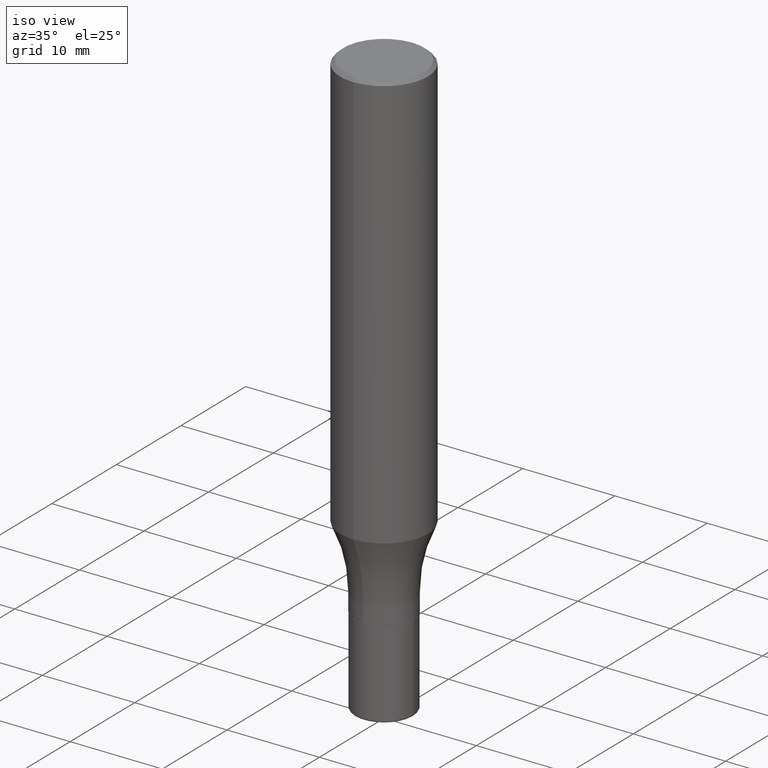
[diagram: clean part render]
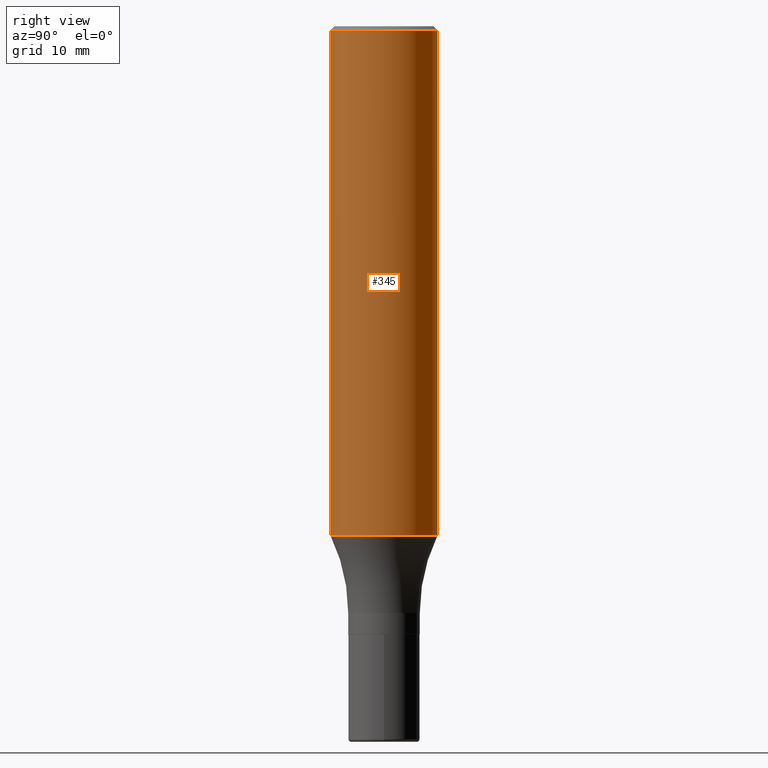
[diagram: tour spotlight — one face highlighted and labeled with its STEP entity id]
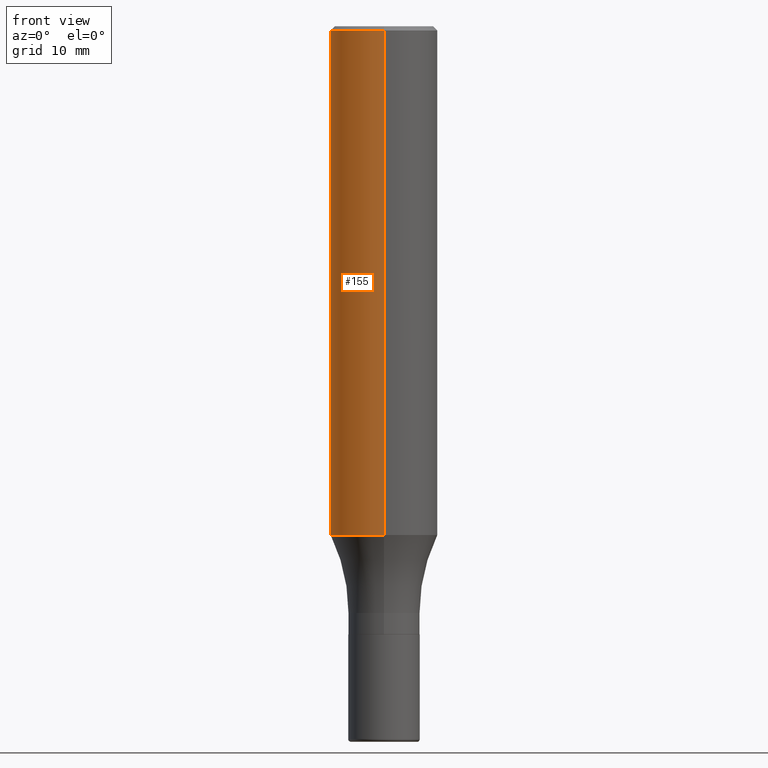
[diagram: tour spotlight — one face highlighted and labeled with its STEP entity id]
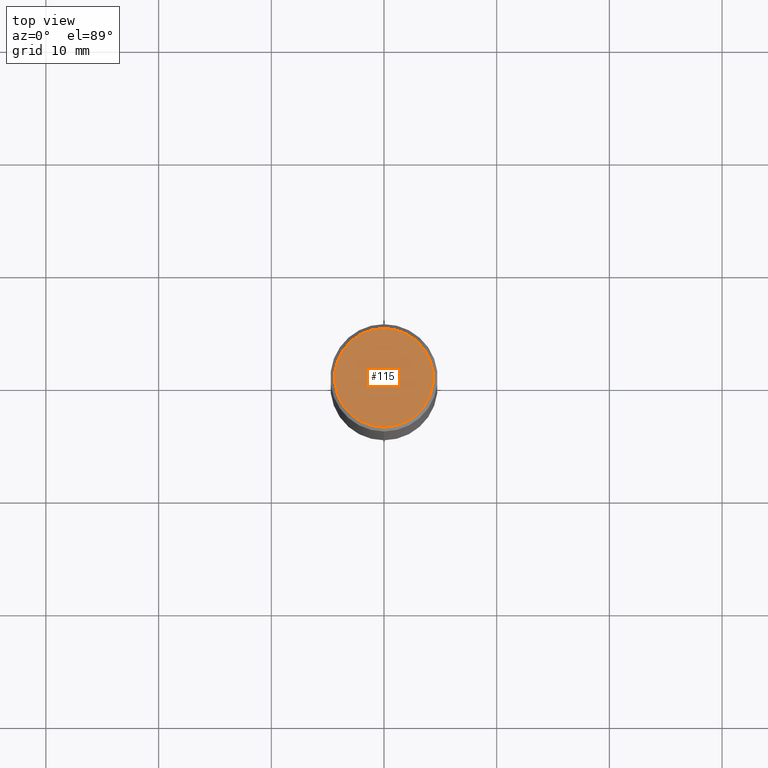
[diagram: tour spotlight — one face highlighted and labeled with its STEP entity id]
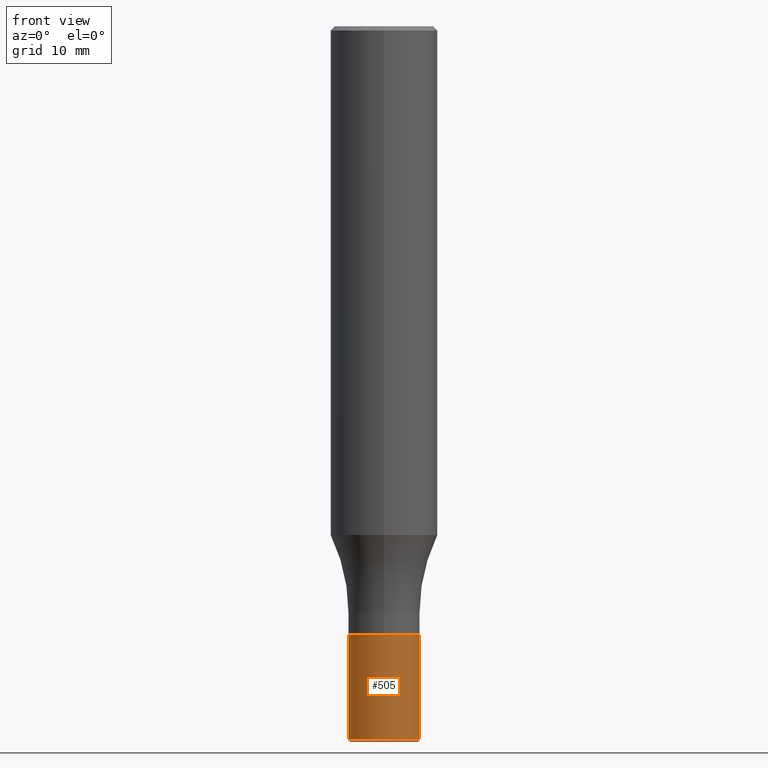
[diagram: tour spotlight — one face highlighted and labeled with its STEP entity id]
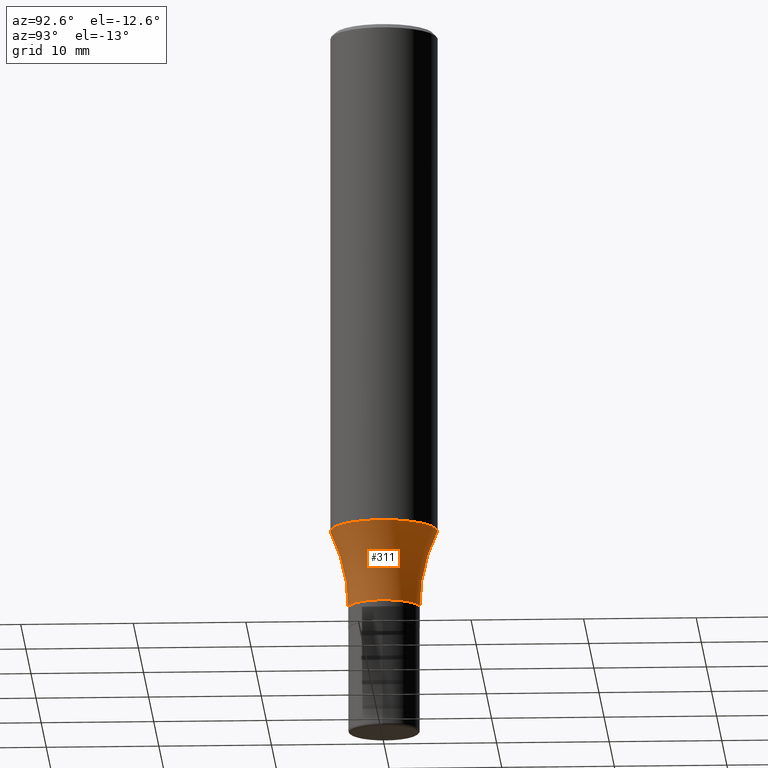
[diagram: tour spotlight — one face highlighted and labeled with its STEP entity id]
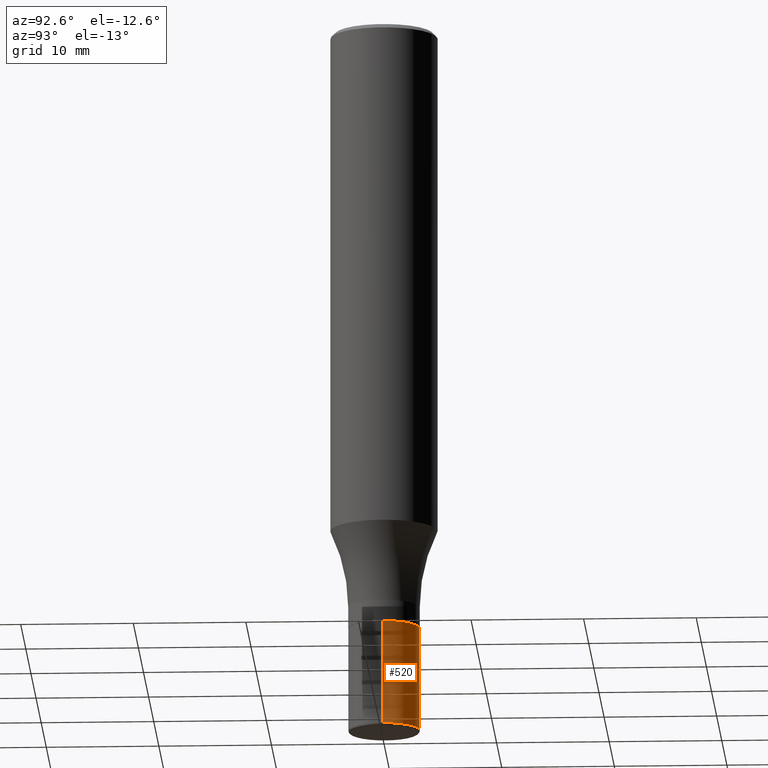
[diagram: tour spotlight — one face highlighted and labeled with its STEP entity id]
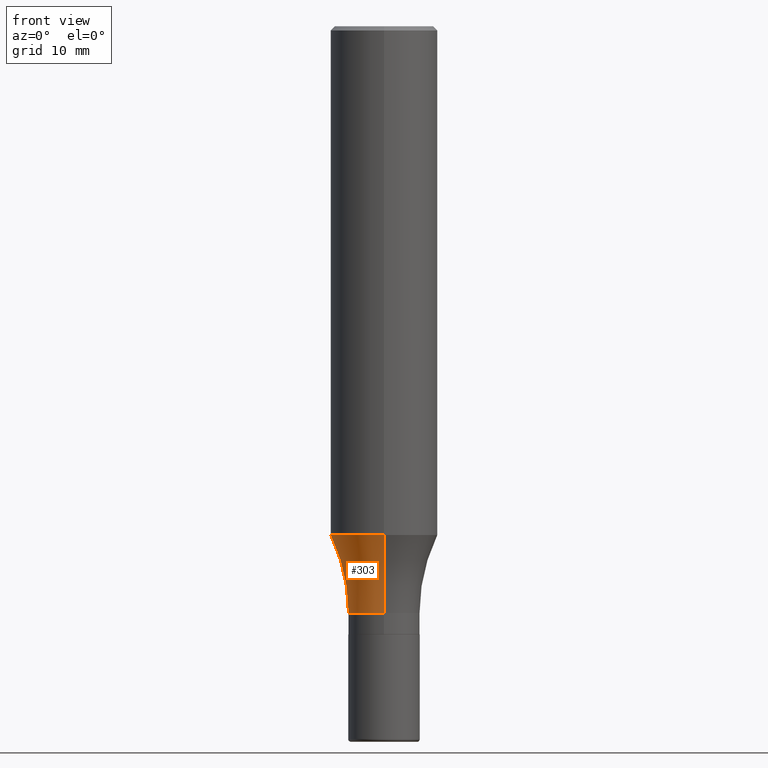
[diagram: tour spotlight — one face highlighted and labeled with its STEP entity id]
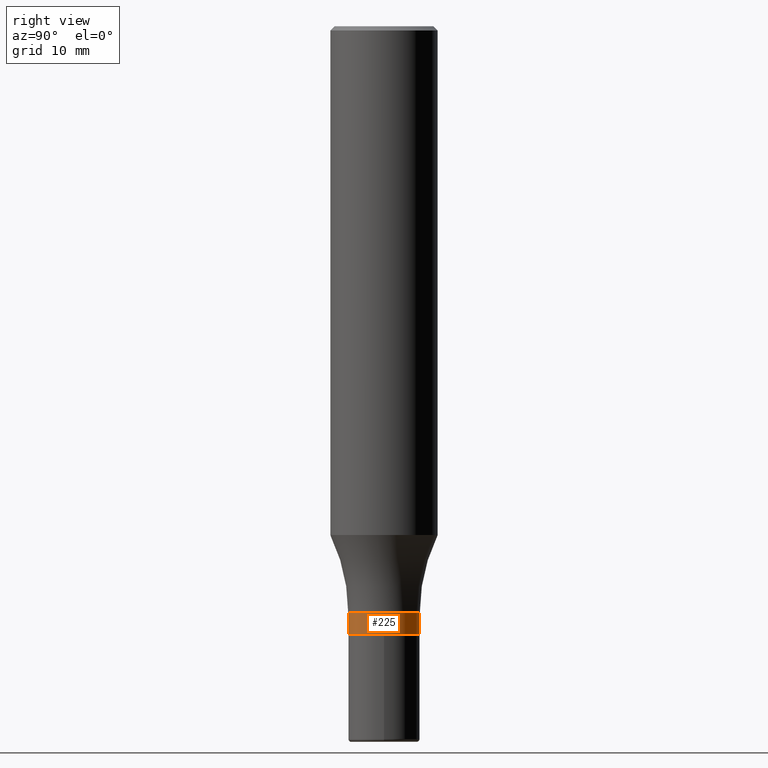
[diagram: tour spotlight — one face highlighted and labeled with its STEP entity id]
A machine part: a face-by-face anatomy tour. The part has 18 B-rep faces; the first image is the clean iso view, then the 8 largest visible faces are spotlighted one at a time (largest first), each with its STEP entity span.

Face 1 — right view, entity #345. In plain terms, the highlighted cylindrical surface (partial cylindrical patch) has radius 4.7625 mm, axis along (-0, 0, 1).
Definition (entity closure, byte-faithful):
#2 = VECTOR ( 'NONE', #404, 39.37007874015748143 ) ;
#6 = AXIS2_PLACEMENT_3D ( 'NONE', #61, #66, #96 ) ;
#16 = CIRCLE ( 'NONE', #6, 0.1874999999999999722 ) ;
#22 = FACE_OUTER_BOUND ( 'NONE', #167, .T. ) ;
#41 = VECTOR ( 'NONE', #78, 39.37007874015748143 ) ;
#58 = VERTEX_POINT ( 'NONE', #218 ) ;
#61 = CARTESIAN_POINT ( 'NONE',  ( 4.348175343030721714E-29, -6.204649568454614815E-15, -1.777568816028708421 ) ) ;
#66 = DIRECTION ( 'NONE',  ( -2.446136151704687579E-29, 3.490525662076200585E-15, 1.000000000000000000 ) ) ;
#78 = DIRECTION ( 'NONE',  ( -2.446136151704687579E-29, 3.490525662076200979E-15, 1.000000000000000000 ) ) ;
#96 = DIRECTION ( 'NONE',  ( -6.982962677686266711E-15, -1.000000000000000000, 2.913971193241881161E-15 ) ) ;
#125 = EDGE_CURVE ( 'NONE', #445, #58, #138, .T. ) ;
#129 = CARTESIAN_POINT ( 'NONE',  ( -1.309305502066174811E-15, -0.1874999999999999722, 6.544735616392875850E-16 ) ) ;
#138 = LINE ( 'NONE', #129, #41 ) ;
#141 = ORIENTED_EDGE ( 'NONE', *, *, #325, .F. ) ;
#167 = EDGE_LOOP ( 'NONE', ( #393, #469, #141, #291 ) ) ;
#169 = EDGE_CURVE ( 'NONE', #317, #407, #175, .T. ) ;
#175 = LINE ( 'NONE', #495, #2 ) ;
#213 = AXIS2_PLACEMENT_3D ( 'NONE', #350, #427, #419 ) ;
#218 = CARTESIAN_POINT ( 'NONE',  ( -1.286343374582161576E-15, -0.1875000000000000833, -0.01499999999999927607 ) ) ;
#223 = CARTESIAN_POINT ( 'NONE',  ( -1.309305502066131029E-15, -0.1875000000000061340, -1.777568816028707532 ) ) ;
#231 = CYLINDRICAL_SURFACE ( 'NONE', #412, 0.1874999999999999722 ) ;
#232 = CIRCLE ( 'NONE', #213, 0.1875000000000000278 ) ;
#268 = CARTESIAN_POINT ( 'NONE',  ( 1.332267629550230841E-15, 0.1874999999999937550, -1.777568816028709087 ) ) ;
#291 = ORIENTED_EDGE ( 'NONE', *, *, #125, .F. ) ;
#308 = DIRECTION ( 'NONE',  ( -6.982962677686266711E-15, -1.000000000000000000, 3.490525662076200979E-15 ) ) ;
#317 = VERTEX_POINT ( 'NONE', #268 ) ;
#321 = CARTESIAN_POINT ( 'NONE',  ( 0.000000000000000000, 0.000000000000000000, 0.000000000000000000 ) ) ;
#325 = EDGE_CURVE ( 'NONE', #58, #407, #232, .T. ) ;
#345 = ADVANCED_FACE ( 'NONE', ( #22 ), #231, .T. ) ;
#350 = CARTESIAN_POINT ( 'NONE',  ( 3.669204227557014781E-31, -5.235788493114276028E-17, -0.01499999999999993179 ) ) ;
#383 = DIRECTION ( 'NONE',  ( -2.446136151704687579E-29, 3.490525662076200585E-15, 1.000000000000000000 ) ) ;
#393 = ORIENTED_EDGE ( 'NONE', *, *, #484, .T. ) ;
#404 = DIRECTION ( 'NONE',  ( -2.446136151704687579E-29, 3.490525662076200979E-15, 1.000000000000000000 ) ) ;
#407 = VERTEX_POINT ( 'NONE', #421 ) ;
#412 = AXIS2_PLACEMENT_3D ( 'NONE', #321, #383, #308 ) ;
#419 = DIRECTION ( 'NONE',  ( -6.982962677686265922E-15, -1.000000000000000000, 3.494488891895536035E-15 ) ) ;
#421 = CARTESIAN_POINT ( 'NONE',  ( 1.309305502066175600E-15, 0.1874999999999999445, -0.01500000000000058752 ) ) ;
#427 = DIRECTION ( 'NONE',  ( -2.446136151704687579E-29, 3.490525662076200585E-15, 1.000000000000000000 ) ) ;
#445 = VERTEX_POINT ( 'NONE', #223 ) ;
#469 = ORIENTED_EDGE ( 'NONE', *, *, #169, .T. ) ;
#484 = EDGE_CURVE ( 'NONE', #445, #317, #16, .T. ) ;
#495 = CARTESIAN_POINT ( 'NONE',  ( 1.332267629550187454E-15, 0.1874999999999999722, -6.544735616392875850E-16 ) ) ;

Face 2 — front view, entity #155. In plain terms, the highlighted cylindrical surface (partial cylindrical patch) has radius 4.7625 mm, axis along (-0, 0, 1).
Definition (entity closure, byte-faithful):
#2 = VECTOR ( 'NONE', #404, 39.37007874015748143 ) ;
#31 = ORIENTED_EDGE ( 'NONE', *, *, #169, .F. ) ;
#41 = VECTOR ( 'NONE', #78, 39.37007874015748143 ) ;
#50 = DIRECTION ( 'NONE',  ( -6.982962677686266711E-15, -1.000000000000000000, 3.490525662076200979E-15 ) ) ;
#58 = VERTEX_POINT ( 'NONE', #218 ) ;
#74 = AXIS2_PLACEMENT_3D ( 'NONE', #444, #255, #50 ) ;
#78 = DIRECTION ( 'NONE',  ( -2.446136151704687579E-29, 3.490525662076200979E-15, 1.000000000000000000 ) ) ;
#97 = ORIENTED_EDGE ( 'NONE', *, *, #466, .T. ) ;
#125 = EDGE_CURVE ( 'NONE', #445, #58, #138, .T. ) ;
#129 = CARTESIAN_POINT ( 'NONE',  ( -1.309305502066174811E-15, -0.1874999999999999722, 6.544735616392875850E-16 ) ) ;
#131 = CYLINDRICAL_SURFACE ( 'NONE', #74, 0.1874999999999999722 ) ;
#138 = LINE ( 'NONE', #129, #41 ) ;
#155 = ADVANCED_FACE ( 'NONE', ( #171 ), #131, .T. ) ;
#169 = EDGE_CURVE ( 'NONE', #317, #407, #175, .T. ) ;
#170 = CIRCLE ( 'NONE', #424, 0.1874999999999999722 ) ;
#171 = FACE_OUTER_BOUND ( 'NONE', #238, .T. ) ;
#175 = LINE ( 'NONE', #495, #2 ) ;
#186 = DIRECTION ( 'NONE',  ( -6.982962677686266711E-15, -1.000000000000000000, 2.913971193241881161E-15 ) ) ;
#203 = DIRECTION ( 'NONE',  ( -2.446136151704687579E-29, 3.490525662076200585E-15, 1.000000000000000000 ) ) ;
#218 = CARTESIAN_POINT ( 'NONE',  ( -1.286343374582161576E-15, -0.1875000000000000833, -0.01499999999999927607 ) ) ;
#223 = CARTESIAN_POINT ( 'NONE',  ( -1.309305502066131029E-15, -0.1875000000000061340, -1.777568816028707532 ) ) ;
#235 = CARTESIAN_POINT ( 'NONE',  ( 4.348175343030721714E-29, -6.204649568454614815E-15, -1.777568816028708421 ) ) ;
#238 = EDGE_LOOP ( 'NONE', ( #31, #97, #263, #361 ) ) ;
#255 = DIRECTION ( 'NONE',  ( -2.446136151704687579E-29, 3.490525662076200585E-15, 1.000000000000000000 ) ) ;
#263 = ORIENTED_EDGE ( 'NONE', *, *, #125, .T. ) ;
#268 = CARTESIAN_POINT ( 'NONE',  ( 1.332267629550230841E-15, 0.1874999999999937550, -1.777568816028709087 ) ) ;
#295 = DIRECTION ( 'NONE',  ( -6.982962677686265922E-15, -1.000000000000000000, 3.494488891895536035E-15 ) ) ;
#317 = VERTEX_POINT ( 'NONE', #268 ) ;
#320 = DIRECTION ( 'NONE',  ( -2.446136151704687579E-29, 3.490525662076200585E-15, 1.000000000000000000 ) ) ;
#358 = AXIS2_PLACEMENT_3D ( 'NONE', #431, #203, #295 ) ;
#361 = ORIENTED_EDGE ( 'NONE', *, *, #515, .F. ) ;
#362 = CIRCLE ( 'NONE', #358, 0.1875000000000000278 ) ;
#404 = DIRECTION ( 'NONE',  ( -2.446136151704687579E-29, 3.490525662076200979E-15, 1.000000000000000000 ) ) ;
#407 = VERTEX_POINT ( 'NONE', #421 ) ;
#421 = CARTESIAN_POINT ( 'NONE',  ( 1.309305502066175600E-15, 0.1874999999999999445, -0.01500000000000058752 ) ) ;
#424 = AXIS2_PLACEMENT_3D ( 'NONE', #235, #320, #186 ) ;
#431 = CARTESIAN_POINT ( 'NONE',  ( 3.669204227557014781E-31, -5.235788493114276028E-17, -0.01499999999999993179 ) ) ;
#444 = CARTESIAN_POINT ( 'NONE',  ( 0.000000000000000000, 0.000000000000000000, 0.000000000000000000 ) ) ;
#445 = VERTEX_POINT ( 'NONE', #223 ) ;
#466 = EDGE_CURVE ( 'NONE', #317, #445, #170, .T. ) ;
#495 = CARTESIAN_POINT ( 'NONE',  ( 1.332267629550187454E-15, 0.1874999999999999722, -6.544735616392875850E-16 ) ) ;
#515 = EDGE_CURVE ( 'NONE', #407, #58, #362, .T. ) ;

Face 3 — top view, entity #115. In plain terms, the highlighted planar face has unit normal (0, -0, -1).
Definition (entity closure, byte-faithful):
#4 = CARTESIAN_POINT ( 'NONE',  ( 4.032559218471161982E-48, -5.754279632434315794E-34, -1.648542422980385758E-19 ) ) ;
#10 = DIRECTION ( 'NONE',  ( 6.982962677686265922E-15, 1.000000000000000000, -3.490525662076200979E-15 ) ) ;
#21 = FACE_OUTER_BOUND ( 'NONE', #258, .T. ) ;
#42 = CIRCLE ( 'NONE', #518, 0.1725000000000000144 ) ;
#62 = ORIENTED_EDGE ( 'NONE', *, *, #467, .T. ) ;
#71 = CARTESIAN_POINT ( 'NONE',  ( -1.234889639598875176E-15, -0.1725000000000000144, 6.019508224658465622E-16 ) ) ;
#82 = DIRECTION ( 'NONE',  ( -6.982962677686266711E-15, -1.000000000000000000, 3.490525662076200191E-15 ) ) ;
#115 = ADVANCED_FACE ( 'NONE', ( #21 ), #332, .F. ) ;
#120 = AXIS2_PLACEMENT_3D ( 'NONE', #402, #121, #10 ) ;
#121 = DIRECTION ( 'NONE',  ( 2.446136151704687019E-29, -3.490525662076200979E-15, -1.000000000000000000 ) ) ;
#132 = EDGE_CURVE ( 'NONE', #220, #370, #314, .T. ) ;
#189 = CARTESIAN_POINT ( 'NONE',  ( 1.256933281983528323E-15, 0.1725000000000000144, -6.022805309504425943E-16 ) ) ;
#220 = VERTEX_POINT ( 'NONE', #71 ) ;
#221 = AXIS2_PLACEMENT_3D ( 'NONE', #4, #298, #82 ) ;
#258 = EDGE_LOOP ( 'NONE', ( #62, #409 ) ) ;
#272 = DIRECTION ( 'NONE',  ( -2.446136151704687579E-29, 3.490525662076200585E-15, 1.000000000000000000 ) ) ;
#278 = CARTESIAN_POINT ( 'NONE',  ( 4.032559218471161982E-48, -5.754279632434315794E-34, -1.648542422980385758E-19 ) ) ;
#298 = DIRECTION ( 'NONE',  ( -2.446136151704687579E-29, 3.490525662076200585E-15, 1.000000000000000000 ) ) ;
#314 = CIRCLE ( 'NONE', #221, 0.1725000000000000144 ) ;
#332 = PLANE ( 'NONE',  #120 ) ;
#370 = VERTEX_POINT ( 'NONE', #189 ) ;
#402 = CARTESIAN_POINT ( 'NONE',  ( 1.204561061900881047E-15, 0.1725000000000000144, -6.021981038292935862E-16 ) ) ;
#409 = ORIENTED_EDGE ( 'NONE', *, *, #132, .T. ) ;
#460 = DIRECTION ( 'NONE',  ( -6.982962677686266711E-15, -1.000000000000000000, 3.490525662076200191E-15 ) ) ;
#467 = EDGE_CURVE ( 'NONE', #370, #220, #42, .T. ) ;
#518 = AXIS2_PLACEMENT_3D ( 'NONE', #278, #272, #460 ) ;

Face 4 — front view, entity #505. In plain terms, the highlighted cylindrical surface (edge-blend (fillet) strip) has radius 3.175 mm, axis along (-0, 0, 1).
Definition (entity closure, byte-faithful):
#11 = VERTEX_POINT ( 'NONE', #65 ) ;
#18 = CARTESIAN_POINT ( 'NONE',  ( 6.089217327400989947E-29, -8.693788533719431716E-15, -2.489999999999999769 ) ) ;
#20 = EDGE_CURVE ( 'NONE', #70, #11, #179, .T. ) ;
#28 = ORIENTED_EDGE ( 'NONE', *, *, #20, .T. ) ;
#33 = DIRECTION ( 'NONE',  ( -2.445468806185136597E-29, 3.491481338843145583E-15, 1.000000000000000000 ) ) ;
#63 = CARTESIAN_POINT ( 'NONE',  ( -0.1250000000000000278, 8.881784197001254296E-16, -6.148668862818634329E-30 ) ) ;
#65 = CARTESIAN_POINT ( 'NONE',  ( 0.1250000000000000833, -9.566658868430215055E-15, -2.489999999999999769 ) ) ;
#70 = VERTEX_POINT ( 'NONE', #98 ) ;
#98 = CARTESIAN_POINT ( 'NONE',  ( -0.1250000000000000833, -7.168414769680431648E-15, -2.489999999999999769 ) ) ;
#99 = AXIS2_PLACEMENT_3D ( 'NONE', #442, #461, #335 ) ;
#106 = DIRECTION ( 'NONE',  ( -2.445468806185136877E-29, 3.491481338843145188E-15, 1.000000000000000000 ) ) ;
#113 = ORIENTED_EDGE ( 'NONE', *, *, #182, .T. ) ;
#148 = LINE ( 'NONE', #63, #438 ) ;
#161 = CYLINDRICAL_SURFACE ( 'NONE', #204, 0.1250000000000000278 ) ;
#163 = DIRECTION ( 'NONE',  ( 1.000000000000000000, -6.982962677686267499E-15, 4.876176775795935793E-29 ) ) ;
#179 = CIRCLE ( 'NONE', #322, 0.1250000000000000833 ) ;
#181 = ORIENTED_EDGE ( 'NONE', *, *, #244, .F. ) ;
#182 = EDGE_CURVE ( 'NONE', #11, #227, #305, .T. ) ;
#204 = AXIS2_PLACEMENT_3D ( 'NONE', #205, #33, #163 ) ;
#205 = CARTESIAN_POINT ( 'NONE',  ( 0.000000000000000000, 0.000000000000000000, 0.000000000000000000 ) ) ;
#219 = EDGE_CURVE ( 'NONE', #70, #337, #148, .T. ) ;
#227 = VERTEX_POINT ( 'NONE', #465 ) ;
#244 = EDGE_CURVE ( 'NONE', #337, #227, #329, .T. ) ;
#259 = CARTESIAN_POINT ( 'NONE',  ( 0.1250000000000000278, -8.728703347107836346E-16, 6.095220969744921142E-30 ) ) ;
#275 = EDGE_LOOP ( 'NONE', ( #455, #28, #113, #181 ) ) ;
#305 = LINE ( 'NONE', #259, #451 ) ;
#322 = AXIS2_PLACEMENT_3D ( 'NONE', #18, #459, #346 ) ;
#329 = CIRCLE ( 'NONE', #99, 0.1250000000000000000 ) ;
#335 = DIRECTION ( 'NONE',  ( 1.000000000000000000, -6.982962677686270655E-15, 0.000000000000000000 ) ) ;
#337 = VERTEX_POINT ( 'NONE', #512 ) ;
#346 = DIRECTION ( 'NONE',  ( 1.000000000000000000, -6.982962677686265922E-15, 0.000000000000000000 ) ) ;
#360 = FACE_OUTER_BOUND ( 'NONE', #275, .T. ) ;
#438 = VECTOR ( 'NONE', #106, 39.37007874015748143 ) ;
#442 = CARTESIAN_POINT ( 'NONE',  ( 5.196621213143415268E-29, -7.419397845041685201E-15, -2.125000000000000000 ) ) ;
#451 = VECTOR ( 'NONE', #454, 39.37007874015748143 ) ;
#454 = DIRECTION ( 'NONE',  ( -2.445468806185136877E-29, 3.491481338843145188E-15, 1.000000000000000000 ) ) ;
#455 = ORIENTED_EDGE ( 'NONE', *, *, #219, .F. ) ;
#459 = DIRECTION ( 'NONE',  ( -2.445468806185136597E-29, 3.491481338843145583E-15, 1.000000000000000000 ) ) ;
#461 = DIRECTION ( 'NONE',  ( -2.445468806185136597E-29, 3.491481338843145583E-15, 1.000000000000000000 ) ) ;
#465 = CARTESIAN_POINT ( 'NONE',  ( 0.1250000000000000000, -8.292268179752468540E-15, -2.125000000000000000 ) ) ;
#505 = ADVANCED_FACE ( 'NONE', ( #360 ), #161, .T. ) ;
#512 = CARTESIAN_POINT ( 'NONE',  ( -0.1250000000000000000, -7.168414769680433226E-15, -2.125000000000000000 ) ) ;

Face 5 — auxiliary view, entity #311. In plain terms, the highlighted toroidal blend (fillet) surface has major radius 19.05 mm and minor (blend) radius 15.875 mm.
Definition (entity closure, byte-faithful):
#6 = AXIS2_PLACEMENT_3D ( 'NONE', #61, #66, #96 ) ;
#16 = CIRCLE ( 'NONE', #6, 0.1874999999999999722 ) ;
#17 = DIRECTION ( 'NONE',  ( -2.446136151704687579E-29, 3.490525662076200585E-15, 1.000000000000000000 ) ) ;
#26 = DIRECTION ( 'NONE',  ( -2.446136151704687579E-29, 3.490525662076200585E-15, 1.000000000000000000 ) ) ;
#36 = CIRCLE ( 'NONE', #108, 0.1250000000000000278 ) ;
#61 = CARTESIAN_POINT ( 'NONE',  ( 4.348175343030721714E-29, -6.204649568454614815E-15, -1.777568816028708421 ) ) ;
#66 = DIRECTION ( 'NONE',  ( -2.446136151704687579E-29, 3.490525662076200585E-15, 1.000000000000000000 ) ) ;
#67 = TOROIDAL_SURFACE ( 'NONE', #487, 0.7500000000000001110, 0.6250000000000000000 ) ;
#69 = DIRECTION ( 'NONE',  ( 7.105427357601003436E-15, 1.000000000000000000, 0.000000000000000000 ) ) ;
#81 = DIRECTION ( 'NONE',  ( -6.982962677686265133E-15, -1.000000000000000000, 0.000000000000000000 ) ) ;
#96 = DIRECTION ( 'NONE',  ( -6.982962677686266711E-15, -1.000000000000000000, 2.913971193241881161E-15 ) ) ;
#102 = VERTEX_POINT ( 'NONE', #140 ) ;
#105 = DIRECTION ( 'NONE',  ( 1.000000000000000000, -7.105427357601001070E-15, 4.926303804877145846E-29 ) ) ;
#108 = AXIS2_PLACEMENT_3D ( 'NONE', #378, #17, #343 ) ;
#112 = EDGE_CURVE ( 'NONE', #102, #187, #36, .T. ) ;
#128 = AXIS2_PLACEMENT_3D ( 'NONE', #211, #397, #81 ) ;
#140 = CARTESIAN_POINT ( 'NONE',  ( -8.728703347107333448E-16, -0.1250000000000071887, -2.049999999999999822 ) ) ;
#149 = DIRECTION ( 'NONE',  ( -6.982962677686265922E-15, -1.000000000000000000, 3.490525662076200585E-15 ) ) ;
#173 = ORIENTED_EDGE ( 'NONE', *, *, #293, .T. ) ;
#187 = VERTEX_POINT ( 'NONE', #216 ) ;
#211 = CARTESIAN_POINT ( 'NONE',  ( -5.237222008264649546E-15, -0.7500000000000072164, -2.049999999999997602 ) ) ;
#216 = CARTESIAN_POINT ( 'NONE',  ( 1.110223024625203083E-15, 0.1249999999999928807, -2.050000000000000711 ) ) ;
#223 = CARTESIAN_POINT ( 'NONE',  ( -1.309305502066131029E-15, -0.1875000000000061340, -1.777568816028707532 ) ) ;
#224 = FACE_OUTER_BOUND ( 'NONE', #273, .T. ) ;
#268 = CARTESIAN_POINT ( 'NONE',  ( 1.332267629550230841E-15, 0.1874999999999937550, -1.777568816028709087 ) ) ;
#273 = EDGE_LOOP ( 'NONE', ( #306, #470, #173, #373 ) ) ;
#293 = EDGE_CURVE ( 'NONE', #445, #102, #508, .T. ) ;
#306 = ORIENTED_EDGE ( 'NONE', *, *, #410, .F. ) ;
#311 = ADVANCED_FACE ( 'NONE', ( #224 ), #67, .F. ) ;
#317 = VERTEX_POINT ( 'NONE', #268 ) ;
#331 = AXIS2_PLACEMENT_3D ( 'NONE', #351, #105, #69 ) ;
#343 = DIRECTION ( 'NONE',  ( -6.982962677686265922E-15, -1.000000000000000000, 4.370956789862820361E-15 ) ) ;
#351 = CARTESIAN_POINT ( 'NONE',  ( 5.329070518200801092E-15, 0.7499999999999930056, -2.050000000000002931 ) ) ;
#373 = ORIENTED_EDGE ( 'NONE', *, *, #112, .T. ) ;
#378 = CARTESIAN_POINT ( 'NONE',  ( 5.014579110994609566E-29, -7.155577607256211456E-15, -2.050000000000000266 ) ) ;
#397 = DIRECTION ( 'NONE',  ( -1.000000000000000000, 6.982962677686265922E-15, -4.883557194083112901E-29 ) ) ;
#410 = EDGE_CURVE ( 'NONE', #317, #187, #453, .T. ) ;
#445 = VERTEX_POINT ( 'NONE', #223 ) ;
#453 = CIRCLE ( 'NONE', #331, 0.6249999999999998890 ) ;
#464 = CARTESIAN_POINT ( 'NONE',  ( 5.013211052679530360E-29, -7.157536744628448622E-15, -2.050000000000000266 ) ) ;
#470 = ORIENTED_EDGE ( 'NONE', *, *, #484, .F. ) ;
#484 = EDGE_CURVE ( 'NONE', #445, #317, #16, .T. ) ;
#487 = AXIS2_PLACEMENT_3D ( 'NONE', #464, #26, #149 ) ;
#508 = CIRCLE ( 'NONE', #128, 0.6249999999999998890 ) ;

Face 6 — auxiliary view, entity #520. In plain terms, the highlighted cylindrical surface (edge-blend (fillet) strip) has radius 3.175 mm, axis along (-0, 0, 1).
Definition (entity closure, byte-faithful):
#11 = VERTEX_POINT ( 'NONE', #65 ) ;
#63 = CARTESIAN_POINT ( 'NONE',  ( -0.1250000000000000278, 8.881784197001254296E-16, -6.148668862818634329E-30 ) ) ;
#64 = DIRECTION ( 'NONE',  ( -2.445468806185136597E-29, 3.491481338843145583E-15, 1.000000000000000000 ) ) ;
#65 = CARTESIAN_POINT ( 'NONE',  ( 0.1250000000000000833, -9.566658868430215055E-15, -2.489999999999999769 ) ) ;
#68 = ORIENTED_EDGE ( 'NONE', *, *, #422, .T. ) ;
#70 = VERTEX_POINT ( 'NONE', #98 ) ;
#92 = EDGE_CURVE ( 'NONE', #227, #337, #297, .T. ) ;
#98 = CARTESIAN_POINT ( 'NONE',  ( -0.1250000000000000833, -7.168414769680431648E-15, -2.489999999999999769 ) ) ;
#106 = DIRECTION ( 'NONE',  ( -2.445468806185136877E-29, 3.491481338843145188E-15, 1.000000000000000000 ) ) ;
#148 = LINE ( 'NONE', #63, #438 ) ;
#182 = EDGE_CURVE ( 'NONE', #11, #227, #305, .T. ) ;
#183 = CARTESIAN_POINT ( 'NONE',  ( 6.089217327400989947E-29, -8.693788533719431716E-15, -2.489999999999999769 ) ) ;
#185 = ORIENTED_EDGE ( 'NONE', *, *, #182, .F. ) ;
#191 = AXIS2_PLACEMENT_3D ( 'NONE', #500, #405, #496 ) ;
#219 = EDGE_CURVE ( 'NONE', #70, #337, #148, .T. ) ;
#227 = VERTEX_POINT ( 'NONE', #465 ) ;
#230 = DIRECTION ( 'NONE',  ( 1.000000000000000000, -6.982962677686265922E-15, 0.000000000000000000 ) ) ;
#259 = CARTESIAN_POINT ( 'NONE',  ( 0.1250000000000000278, -8.728703347107836346E-16, 6.095220969744921142E-30 ) ) ;
#289 = DIRECTION ( 'NONE',  ( -2.445468806185136597E-29, 3.491481338843145583E-15, 1.000000000000000000 ) ) ;
#297 = CIRCLE ( 'NONE', #191, 0.1250000000000000000 ) ;
#305 = LINE ( 'NONE', #259, #451 ) ;
#324 = FACE_OUTER_BOUND ( 'NONE', #380, .T. ) ;
#327 = CIRCLE ( 'NONE', #365, 0.1250000000000000833 ) ;
#336 = AXIS2_PLACEMENT_3D ( 'NONE', #434, #289, #519 ) ;
#337 = VERTEX_POINT ( 'NONE', #512 ) ;
#355 = ORIENTED_EDGE ( 'NONE', *, *, #92, .F. ) ;
#365 = AXIS2_PLACEMENT_3D ( 'NONE', #183, #64, #230 ) ;
#380 = EDGE_LOOP ( 'NONE', ( #68, #478, #355, #185 ) ) ;
#395 = CYLINDRICAL_SURFACE ( 'NONE', #336, 0.1250000000000000278 ) ;
#405 = DIRECTION ( 'NONE',  ( -2.445468806185136597E-29, 3.491481338843145583E-15, 1.000000000000000000 ) ) ;
#422 = EDGE_CURVE ( 'NONE', #11, #70, #327, .T. ) ;
#434 = CARTESIAN_POINT ( 'NONE',  ( 0.000000000000000000, 0.000000000000000000, 0.000000000000000000 ) ) ;
#438 = VECTOR ( 'NONE', #106, 39.37007874015748143 ) ;
#451 = VECTOR ( 'NONE', #454, 39.37007874015748143 ) ;
#454 = DIRECTION ( 'NONE',  ( -2.445468806185136877E-29, 3.491481338843145188E-15, 1.000000000000000000 ) ) ;
#465 = CARTESIAN_POINT ( 'NONE',  ( 0.1250000000000000000, -8.292268179752468540E-15, -2.125000000000000000 ) ) ;
#478 = ORIENTED_EDGE ( 'NONE', *, *, #219, .T. ) ;
#496 = DIRECTION ( 'NONE',  ( 1.000000000000000000, -6.982962677686270655E-15, 0.000000000000000000 ) ) ;
#500 = CARTESIAN_POINT ( 'NONE',  ( 5.196621213143415268E-29, -7.419397845041685201E-15, -2.125000000000000000 ) ) ;
#512 = CARTESIAN_POINT ( 'NONE',  ( -0.1250000000000000000, -7.168414769680433226E-15, -2.125000000000000000 ) ) ;
#519 = DIRECTION ( 'NONE',  ( 1.000000000000000000, -6.982962677686267499E-15, 4.876176775795935793E-29 ) ) ;
#520 = ADVANCED_FACE ( 'NONE', ( #324 ), #395, .T. ) ;

Face 7 — front view, entity #303. In plain terms, the highlighted toroidal blend (fillet) surface has major radius 19.05 mm and minor (blend) radius 15.875 mm.
Definition (entity closure, byte-faithful):
#15 = DIRECTION ( 'NONE',  ( -2.446136151704687579E-29, 3.490525662076200585E-15, 1.000000000000000000 ) ) ;
#37 = TOROIDAL_SURFACE ( 'NONE', #240, 0.7500000000000001110, 0.6250000000000000000 ) ;
#69 = DIRECTION ( 'NONE',  ( 7.105427357601003436E-15, 1.000000000000000000, 0.000000000000000000 ) ) ;
#81 = DIRECTION ( 'NONE',  ( -6.982962677686265133E-15, -1.000000000000000000, 0.000000000000000000 ) ) ;
#102 = VERTEX_POINT ( 'NONE', #140 ) ;
#105 = DIRECTION ( 'NONE',  ( 1.000000000000000000, -7.105427357601001070E-15, 4.926303804877145846E-29 ) ) ;
#128 = AXIS2_PLACEMENT_3D ( 'NONE', #211, #397, #81 ) ;
#140 = CARTESIAN_POINT ( 'NONE',  ( -8.728703347107333448E-16, -0.1250000000000071887, -2.049999999999999822 ) ) ;
#170 = CIRCLE ( 'NONE', #424, 0.1874999999999999722 ) ;
#186 = DIRECTION ( 'NONE',  ( -6.982962677686266711E-15, -1.000000000000000000, 2.913971193241881161E-15 ) ) ;
#187 = VERTEX_POINT ( 'NONE', #216 ) ;
#200 = ORIENTED_EDGE ( 'NONE', *, *, #290, .T. ) ;
#211 = CARTESIAN_POINT ( 'NONE',  ( -5.237222008264649546E-15, -0.7500000000000072164, -2.049999999999997602 ) ) ;
#216 = CARTESIAN_POINT ( 'NONE',  ( 1.110223024625203083E-15, 0.1249999999999928807, -2.050000000000000711 ) ) ;
#223 = CARTESIAN_POINT ( 'NONE',  ( -1.309305502066131029E-15, -0.1875000000000061340, -1.777568816028707532 ) ) ;
#226 = ORIENTED_EDGE ( 'NONE', *, *, #410, .T. ) ;
#235 = CARTESIAN_POINT ( 'NONE',  ( 4.348175343030721714E-29, -6.204649568454614815E-15, -1.777568816028708421 ) ) ;
#237 = DIRECTION ( 'NONE',  ( -2.446136151704687579E-29, 3.490525662076200585E-15, 1.000000000000000000 ) ) ;
#240 = AXIS2_PLACEMENT_3D ( 'NONE', #480, #237, #379 ) ;
#253 = DIRECTION ( 'NONE',  ( -6.982962677686265922E-15, -1.000000000000000000, 4.370956789862820361E-15 ) ) ;
#264 = CARTESIAN_POINT ( 'NONE',  ( 5.014579110994609566E-29, -7.155577607256211456E-15, -2.050000000000000266 ) ) ;
#268 = CARTESIAN_POINT ( 'NONE',  ( 1.332267629550230841E-15, 0.1874999999999937550, -1.777568816028709087 ) ) ;
#290 = EDGE_CURVE ( 'NONE', #187, #102, #377, .T. ) ;
#293 = EDGE_CURVE ( 'NONE', #445, #102, #508, .T. ) ;
#303 = ADVANCED_FACE ( 'NONE', ( #488 ), #37, .F. ) ;
#307 = ORIENTED_EDGE ( 'NONE', *, *, #466, .F. ) ;
#317 = VERTEX_POINT ( 'NONE', #268 ) ;
#320 = DIRECTION ( 'NONE',  ( -2.446136151704687579E-29, 3.490525662076200585E-15, 1.000000000000000000 ) ) ;
#331 = AXIS2_PLACEMENT_3D ( 'NONE', #351, #105, #69 ) ;
#351 = CARTESIAN_POINT ( 'NONE',  ( 5.329070518200801092E-15, 0.7499999999999930056, -2.050000000000002931 ) ) ;
#376 = ORIENTED_EDGE ( 'NONE', *, *, #293, .F. ) ;
#377 = CIRCLE ( 'NONE', #499, 0.1250000000000000278 ) ;
#379 = DIRECTION ( 'NONE',  ( -6.982962677686265922E-15, -1.000000000000000000, 3.490525662076200585E-15 ) ) ;
#389 = EDGE_LOOP ( 'NONE', ( #307, #226, #200, #376 ) ) ;
#397 = DIRECTION ( 'NONE',  ( -1.000000000000000000, 6.982962677686265922E-15, -4.883557194083112901E-29 ) ) ;
#410 = EDGE_CURVE ( 'NONE', #317, #187, #453, .T. ) ;
#424 = AXIS2_PLACEMENT_3D ( 'NONE', #235, #320, #186 ) ;
#445 = VERTEX_POINT ( 'NONE', #223 ) ;
#453 = CIRCLE ( 'NONE', #331, 0.6249999999999998890 ) ;
#466 = EDGE_CURVE ( 'NONE', #317, #445, #170, .T. ) ;
#480 = CARTESIAN_POINT ( 'NONE',  ( 5.013211052679530360E-29, -7.157536744628448622E-15, -2.050000000000000266 ) ) ;
#488 = FACE_OUTER_BOUND ( 'NONE', #389, .T. ) ;
#499 = AXIS2_PLACEMENT_3D ( 'NONE', #264, #15, #253 ) ;
#508 = CIRCLE ( 'NONE', #128, 0.6249999999999998890 ) ;

Face 8 — right view, entity #225. In plain terms, the highlighted cylindrical surface (edge-blend (fillet) strip) has radius 3.175 mm, axis along (-0, 0, 1).
Definition (entity closure, byte-faithful):
#7 = AXIS2_PLACEMENT_3D ( 'NONE', #492, #250, #330 ) ;
#13 = DIRECTION ( 'NONE',  ( -2.446136151704687579E-29, 3.490525662076200979E-15, 1.000000000000000000 ) ) ;
#17 = DIRECTION ( 'NONE',  ( -2.446136151704687579E-29, 3.490525662076200585E-15, 1.000000000000000000 ) ) ;
#27 = VECTOR ( 'NONE', #13, 39.37007874015748143 ) ;
#29 = CARTESIAN_POINT ( 'NONE',  ( -8.728703347107315698E-16, -0.1250000000000074385, -2.124499999999999833 ) ) ;
#36 = CIRCLE ( 'NONE', #108, 0.1250000000000000278 ) ;
#44 = LINE ( 'NONE', #334, #196 ) ;
#51 = CARTESIAN_POINT ( 'NONE',  ( 8.881784197001765083E-16, 0.1249999999999926170, -2.124500000000001165 ) ) ;
#76 = CIRCLE ( 'NONE', #7, 0.1250000000000000278 ) ;
#93 = ORIENTED_EDGE ( 'NONE', *, *, #112, .F. ) ;
#102 = VERTEX_POINT ( 'NONE', #140 ) ;
#108 = AXIS2_PLACEMENT_3D ( 'NONE', #378, #17, #343 ) ;
#112 = EDGE_CURVE ( 'NONE', #102, #187, #36, .T. ) ;
#114 = ORIENTED_EDGE ( 'NONE', *, *, #296, .T. ) ;
#139 = EDGE_CURVE ( 'NONE', #176, #187, #44, .T. ) ;
#140 = CARTESIAN_POINT ( 'NONE',  ( -8.728703347107333448E-16, -0.1250000000000071887, -2.049999999999999822 ) ) ;
#176 = VERTEX_POINT ( 'NONE', #51 ) ;
#187 = VERTEX_POINT ( 'NONE', #216 ) ;
#196 = VECTOR ( 'NONE', #489, 39.37007874015748143 ) ;
#216 = CARTESIAN_POINT ( 'NONE',  ( 1.110223024625203083E-15, 0.1249999999999928807, -2.050000000000000711 ) ) ;
#225 = ADVANCED_FACE ( 'NONE', ( #316 ), #280, .T. ) ;
#242 = ORIENTED_EDGE ( 'NONE', *, *, #399, .F. ) ;
#250 = DIRECTION ( 'NONE',  ( -2.446136151704687579E-29, 3.490525662076200585E-15, 1.000000000000000000 ) ) ;
#276 = CARTESIAN_POINT ( 'NONE',  ( -8.728703347107834374E-16, -0.1250000000000000278, 4.363157077595251717E-16 ) ) ;
#280 = CYLINDRICAL_SURFACE ( 'NONE', #374, 0.1250000000000000278 ) ;
#283 = DIRECTION ( 'NONE',  ( -6.982962677686265922E-15, -1.000000000000000000, 3.490525662076200585E-15 ) ) ;
#296 = EDGE_CURVE ( 'NONE', #339, #176, #76, .T. ) ;
#313 = LINE ( 'NONE', #276, #27 ) ;
#316 = FACE_OUTER_BOUND ( 'NONE', #359, .T. ) ;
#319 = DIRECTION ( 'NONE',  ( -2.446136151704687579E-29, 3.490525662076200585E-15, 1.000000000000000000 ) ) ;
#330 = DIRECTION ( 'NONE',  ( -6.982962677686265922E-15, -1.000000000000000000, 4.370956789862820361E-15 ) ) ;
#334 = CARTESIAN_POINT ( 'NONE',  ( 8.881784197001254296E-16, 0.1250000000000000278, -4.363157077595251717E-16 ) ) ;
#339 = VERTEX_POINT ( 'NONE', #29 ) ;
#343 = DIRECTION ( 'NONE',  ( -6.982962677686265922E-15, -1.000000000000000000, 4.370956789862820361E-15 ) ) ;
#359 = EDGE_LOOP ( 'NONE', ( #114, #411, #93, #242 ) ) ;
#374 = AXIS2_PLACEMENT_3D ( 'NONE', #425, #319, #283 ) ;
#378 = CARTESIAN_POINT ( 'NONE',  ( 5.014579110994609566E-29, -7.155577607256211456E-15, -2.050000000000000266 ) ) ;
#399 = EDGE_CURVE ( 'NONE', #339, #102, #313, .T. ) ;
#411 = ORIENTED_EDGE ( 'NONE', *, *, #139, .T. ) ;
#425 = CARTESIAN_POINT ( 'NONE',  ( 0.000000000000000000, 0.000000000000000000, 0.000000000000000000 ) ) ;
#489 = DIRECTION ( 'NONE',  ( -2.446136151704687579E-29, 3.490525662076200979E-15, 1.000000000000000000 ) ) ;
#492 = CARTESIAN_POINT ( 'NONE',  ( 5.196816254296610077E-29, -7.415621769080889546E-15, -2.124500000000000721 ) ) ;